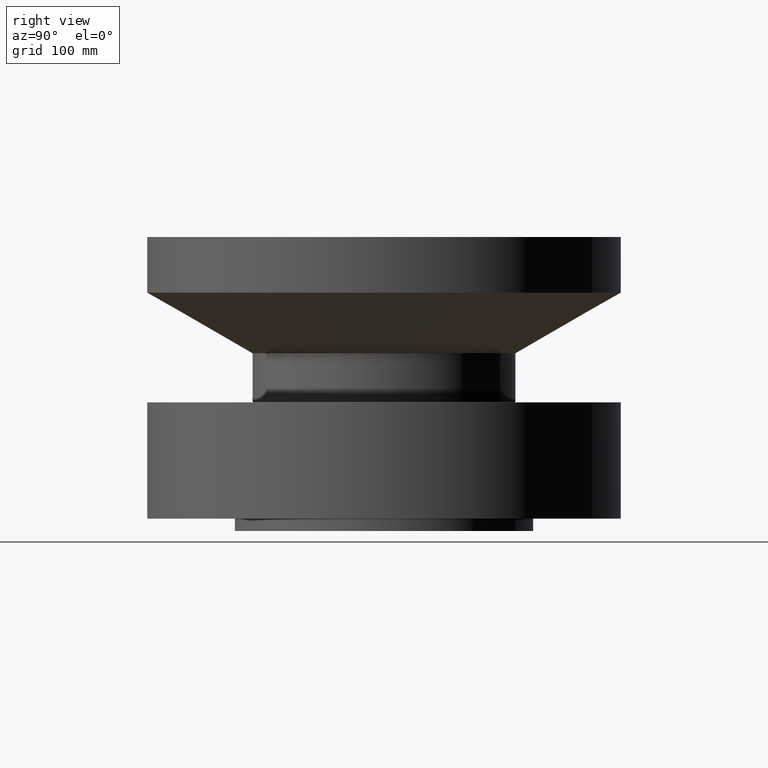
[diagram: clean part render]
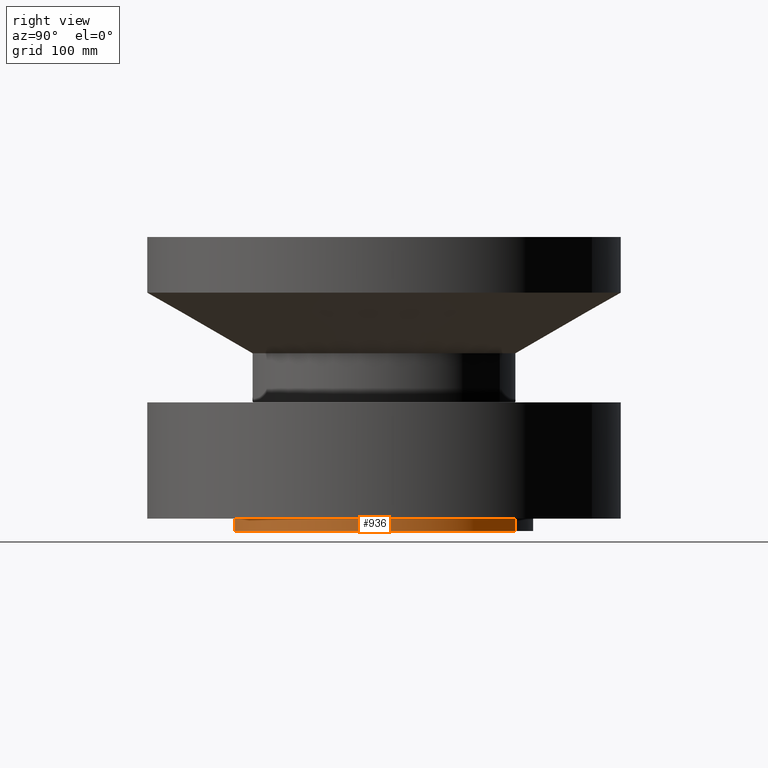
[diagram: same view with one face highlighted and labeled with its STEP entity id]
A machine part, right view. The second image highlights one B-rep face of the part: STEP entity #936.
In plain terms, the highlighted cylindrical surface (partial cylindrical patch) has radius 212.725 mm, axis along (0, 0, -1).
Its self-contained STEP definition (entity closure, byte-faithful):
#109=AXIS2_PLACEMENT_3D('Circle Axis2P3D',#107,#108,$) ;
#896=AXIS2_PLACEMENT_3D('Circle Axis2P3D',#894,#895,$) ;
#911=AXIS2_PLACEMENT_3D('Cylinder Axis2P3D',#908,#909,#910) ;
#107=CARTESIAN_POINT('Axis2P3D Location',(0.,0.,0.)) ;
#111=CARTESIAN_POINT('Vertex',(4.01518888583,7.34975395586,0.)) ;
#113=CARTESIAN_POINT('Vertex',(-4.01518888583,-7.34975395586,0.)) ;
#889=CARTESIAN_POINT('Vertex',(-4.01518888583,-7.34975395586,-0.688000000003)) ;
#891=CARTESIAN_POINT('Vertex',(4.01518888583,7.34975395586,-0.688000000003)) ;
#894=CARTESIAN_POINT('Axis2P3D Location',(0.,0.,-0.688000000003)) ;
#908=CARTESIAN_POINT('Axis2P3D Location',(0.,0.,7.53100000003)) ;
#913=CARTESIAN_POINT('Line Origine',(-4.01518888583,-7.34975395586,-0.344000000001)) ;
#918=CARTESIAN_POINT('Line Origine',(4.01518888583,7.34975395586,-0.344000000001)) ;
#108=DIRECTION('Axis2P3D Direction',(0.,0.,-0.0393700787402)) ;
#895=DIRECTION('Axis2P3D Direction',(0.,0.,-0.0393700787402)) ;
#909=DIRECTION('Axis2P3D Direction',(0.,0.,-0.0393700787402)) ;
#910=DIRECTION('Axis2P3D XDirection',(0.0188750212049,0.0345504945626,0.)) ;
#914=DIRECTION('Vector Direction',(0.,0.,-0.0393700787402)) ;
#919=DIRECTION('Vector Direction',(0.,0.,-0.0393700787402)) ;
#915=VECTOR('Line Direction',#914,0.0393700787402) ;
#920=VECTOR('Line Direction',#919,0.0393700787402) ;
#931=ORIENTED_EDGE('',*,*,#898,.F.) ;
#932=ORIENTED_EDGE('',*,*,#922,.T.) ;
#933=ORIENTED_EDGE('',*,*,#115,.T.) ;
#934=ORIENTED_EDGE('',*,*,#917,.F.) ;
#936=ADVANCED_FACE('PartBody',(#935),#912,.T.) ;
#110=CIRCLE('generated circle',#109,8.37500000003) ;
#897=CIRCLE('generated circle',#896,8.37500000003) ;
#912=CYLINDRICAL_SURFACE('generated cylinder',#911,8.37500000003) ;
#115=EDGE_CURVE('',#112,#114,#110,.T.) ;
#898=EDGE_CURVE('',#892,#890,#897,.T.) ;
#917=EDGE_CURVE('',#890,#114,#916,.F.) ;
#922=EDGE_CURVE('',#892,#112,#921,.F.) ;
#930=EDGE_LOOP('',(#931,#932,#933,#934)) ;
#935=FACE_OUTER_BOUND('',#930,.T.) ;
#916=LINE('Line',#913,#915) ;
#921=LINE('Line',#918,#920) ;
#112=VERTEX_POINT('',#111) ;
#114=VERTEX_POINT('',#113) ;
#890=VERTEX_POINT('',#889) ;
#892=VERTEX_POINT('',#891) ;